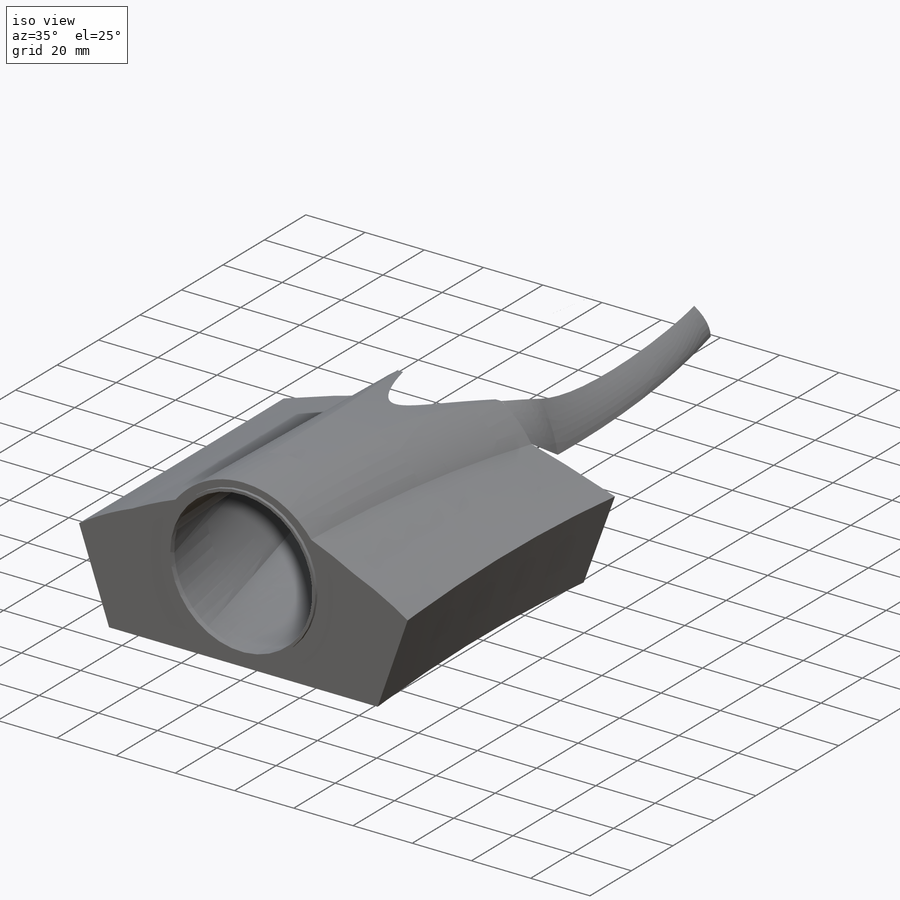
[diagram: iso view]
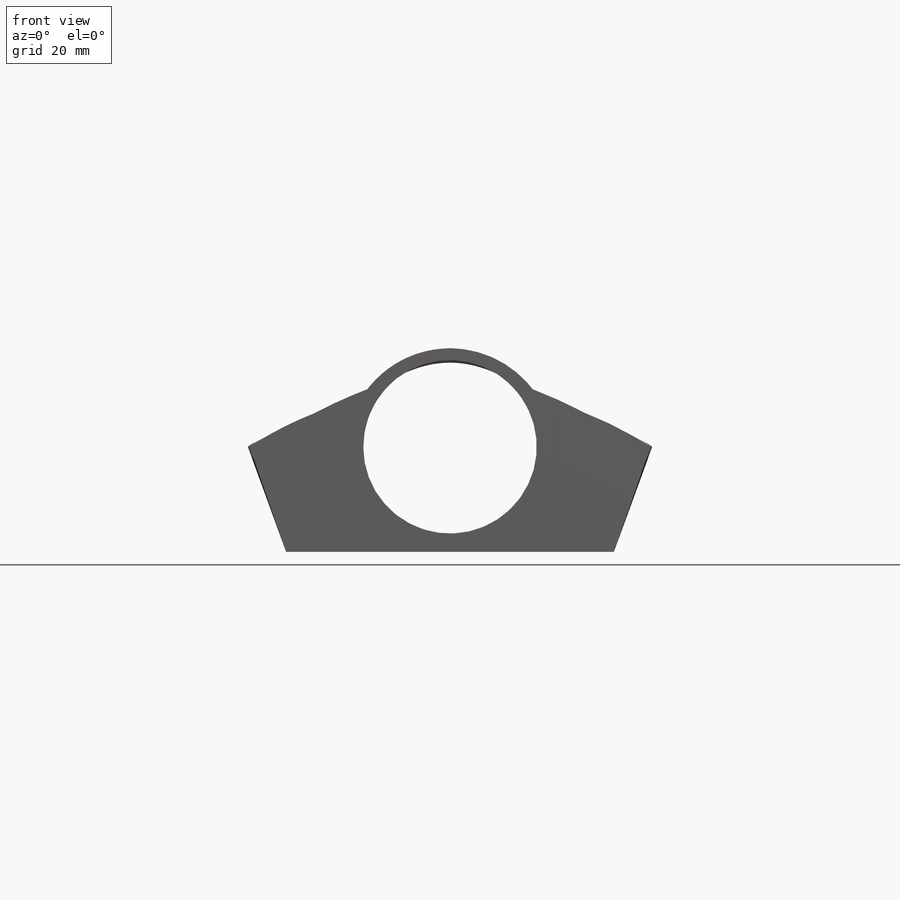
[diagram: front view]
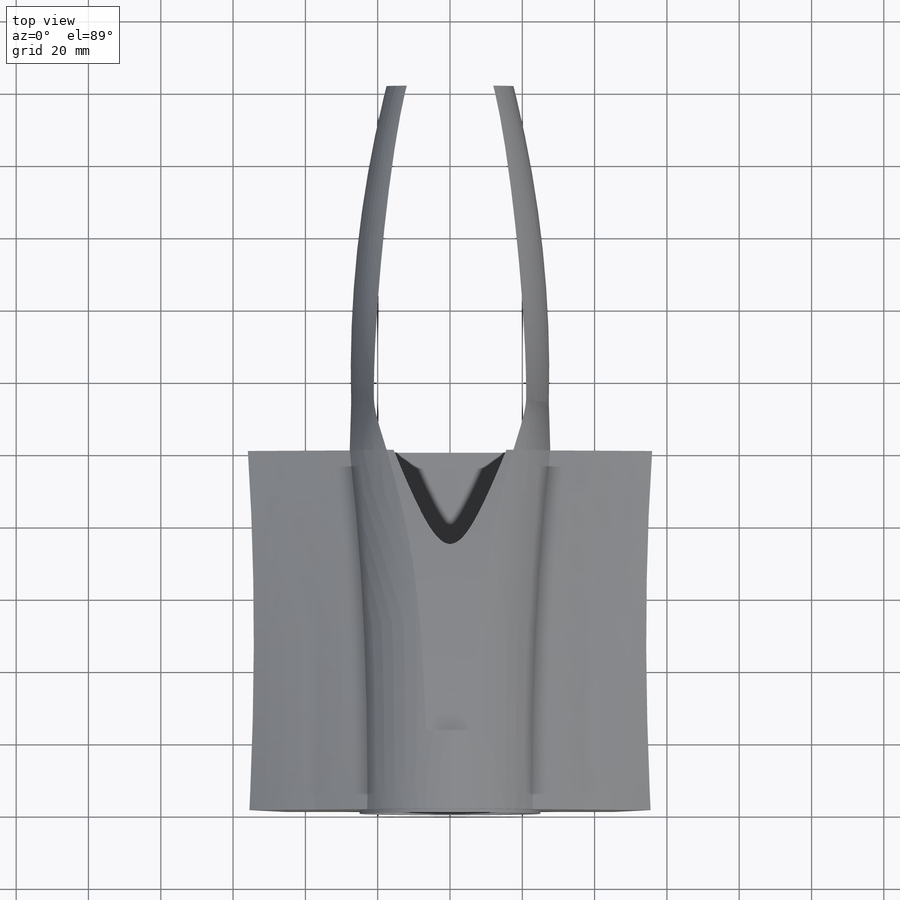
[diagram: top view]
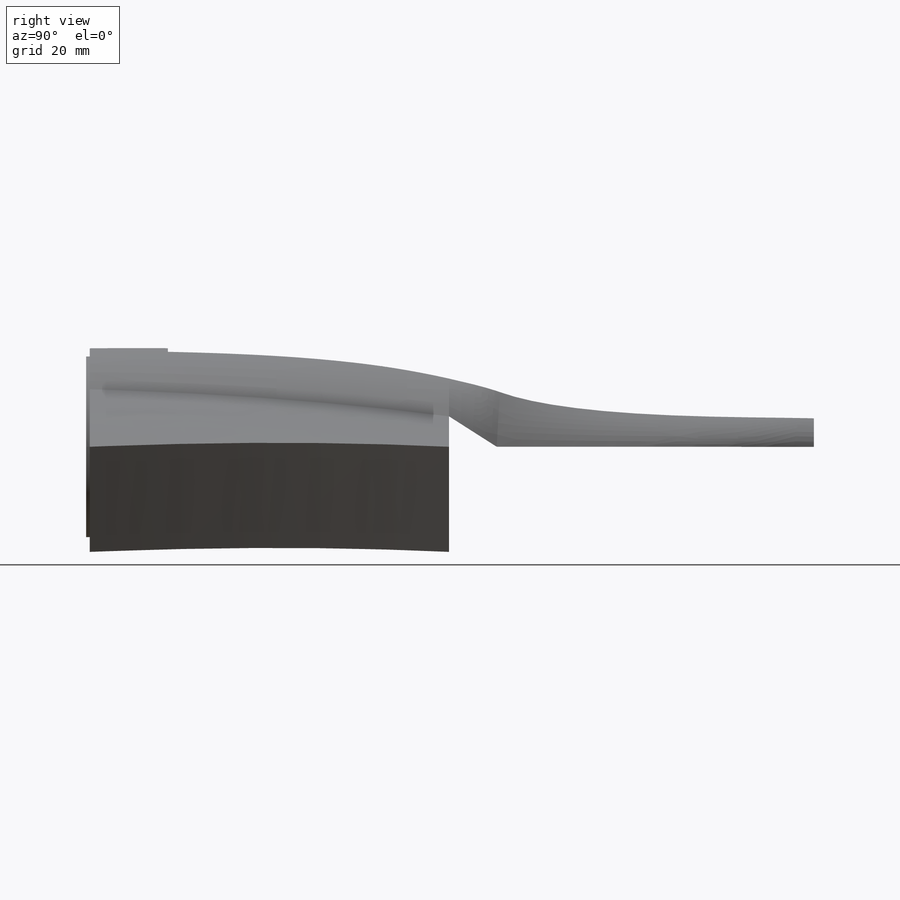
[diagram: right view]
SOLIDWORKS PART (.sldprt)
format: sldprt  version: not decoded by parser v0  size: 1,868,288 bytes
history: native  units: mm
features: sketch x72, plane x13, revolve x11, mirror x5, cut_extrude x4, shell x3, material x1, extrude x1 (+9 scaffold rows collapsed)
feature tree (119):
  scaffold x9  (default folders/planes/origin — collapsed)
  material  "Material <sin especificar>"
  plane  "Alzado"
  plane  "Planta"
  plane  "Vista lateral"
  sketch  "superior"  dims[D1=330.0mm D2=240.0mm D3=185.0mm]
  sketch  "frontal"
  sketch  "Imagen de croquis4"
  sketch  "lateral1"
  sketch  "Imagen de croquis5"
  sketch  "Croquis6"
  plane  "planomotor"
  sketch  "Croquis7"  dims[D1=~55.925151mm]
  extrude  "Saliente-Extruir1"  Depth=1mm
  sketch  "referenciaplanofindeturbina"  dims[D1=81.0mm D2=150.0mm]
  plane  "Plano2"
  sketch  "Croquis9"  dims[D1=50.0mm]
  sketch  "Croquis11"  dims[c1.D1=~146.86549mm c2.D1=66.0deg c3.D1=~146.61291mm c4.D1=66.0deg c4.D2=146.6mm c4.D3=20.0mm c4.D4=53.0mm c4.D5=~69.650835mm c5.D5=~81.942705deg c6.D5=~160.672424mm c7.D5=~83.907738deg c8.D5=~177.787656mm c9.D5=84.0deg]
  plane  "Plano3"  Offset=164mm
  plane  "Plano4"
  sketch  "guiaentradadeaire"  dims[c1.D1=~29.156335mm c2.D1=110.0deg c2.D2=37.0mm c2.D4=24.0mm c2.D3=1.0mm]
  plane  "Plano6"
  sketch  "secciontobera1"  dims[c1.D1=~24.294591mm c2.D1=~109.246964deg]
  sketch  "secciontobera2"
  sketch  "Croquis3D2"
  sketch  "Croquis3D3"
  sketch  "Croquis15"
  cut_extrude  "Cortar-Extruir1"  Depth=245mm
  mirror  "Simetría4"
  sketch  "Croquis16"  dims[D1=0.0mm D2=1.0mm]
  sketch  "Croquis17"  dims[D1=0.0mm D2=1.0mm]
  shell  "Vaciado2"  Thickness=1mm
  plane  "Plano7"  Offset=281mm
  sketch  "Croquis18"
  sketch  "Croquis19"
  revolve  "Revolución1"  Angle=360deg
  sketch  "Croquis20"  dims[D1=0.0mm]
  cut_extrude  "Cortar-Extruir10"  Depth=2mm
  sketch  "Croquis21"
  sketch  "Croquis22"
  sketch  "Croquis23"
  sketch  "Croquis3D4"
  sketch  "Croquis3D5"
  sketch  "Croquis24"
  sketch  "Croquis25"
  plane  "Plano8"
  sketch  "Croquis3D6"
  sketch  "Croquis3D7"
  sketch  "Croquis3D8"
  sketch  "Croquis27"
  sketch  "Croquis28"
  sketch  "Croquis3D9"
  sketch  "Croquis29"
  sketch  "Croquis30"
  sketch  "Croquis31"
  sketch  "Croquis3D11"  dims[D1=0.0mm]
  revolve  "Superficie-Equidistancia2"  [1 undecoded]
  revolve  "Superficie-Equidistancia3"  [1 undecoded]
  revolve  "Superficie-Equidistancia4"  [1 undecoded]
  revolve  "Superficie-Equidistancia5"  [1 undecoded]
  revolve  "Superficie-Equidistancia6"  [1 undecoded]
  revolve  "Superficie-Equidistancia7"  [1 undecoded]
  revolve  "Superficie-Equidistancia8"  [1 undecoded]
  revolve  "Superficie-Equidistancia9"  [1 undecoded]
  revolve  "Superficie-Equidistancia10"  [1 undecoded]
  revolve  "Superficie-Equidistancia11"  [1 undecoded]
  shell  "Superficie-Coser2"  [1 undecoded]
  shell  "Superficie-Coser3"  [1 undecoded]
  sketch  "Croquis32"
  cut_extrude  "Cortar-Extruir11"  Depth=100mm
  plane  "Plano9"
  sketch  "Croquis33"
  sketch  "Croquis3D13"
  sketch  "guia1"  dims[D1=1.0mm]
  sketch  "Croquis35"
  sketch  "Croquis36"
  sketch  "Croquis37"
  sketch  "Croquis3D14"
  mirror  "Simetría5"
  sketch  "Croquis38"
  sketch  "Croquis39"  dims[D1=116.5mm]
  sketch  "Croquis40"  dims[D1=0.0mm D2=1.0mm]
  plane  "Plano10"
  sketch  "Croquis41"  dims[D1=1.0mm]
  sketch  "Croquis3D15"
  sketch  "Croquis3D16"
  sketch  "Croquis3D17"
  sketch  "Croquis44"
  mirror  "Simetría6"
  sketch  "Croquis45"  dims[D1=1.0mm]
  sketch  "Croquis46"  dims[D1=0.0mm]
  sketch  "Croquis3D18"
  sketch  "Croquis3D19"
  mirror  "Simetría12"
  sketch  "Croquis3D20"
  sketch  "Croquis3D21"
  sketch  "Croquis3D22"
  sketch  "Croquis48"
  sketch  "Croquis3D23"
  sketch  "Croquis49"
  cut_extrude  "Cortar-Extruir12"  [1 undecoded]
  sketch  "Croquis53"  dims[D1=0.0mm]
  sketch  "Croquis54"
  sketch  "Croquis55"
  sketch  "Croquis3D25"
  sketch  "Croquis3D28"
  sketch  "Croquis3D29"
  sketch  "Croquis3D26"
  mirror  "Simetría13"
  plane  "Plano11"
  sketch  "Croquis56"
decode coverage: 24 of 96 modeling features carry decoded parameters
note: ~ marks probable driven/reference dimensions
note: 13 parameter values undecoded
summary: no parameter record found for 13 features
note: suppression state not decoded; provenance and decode notes live in map.json
